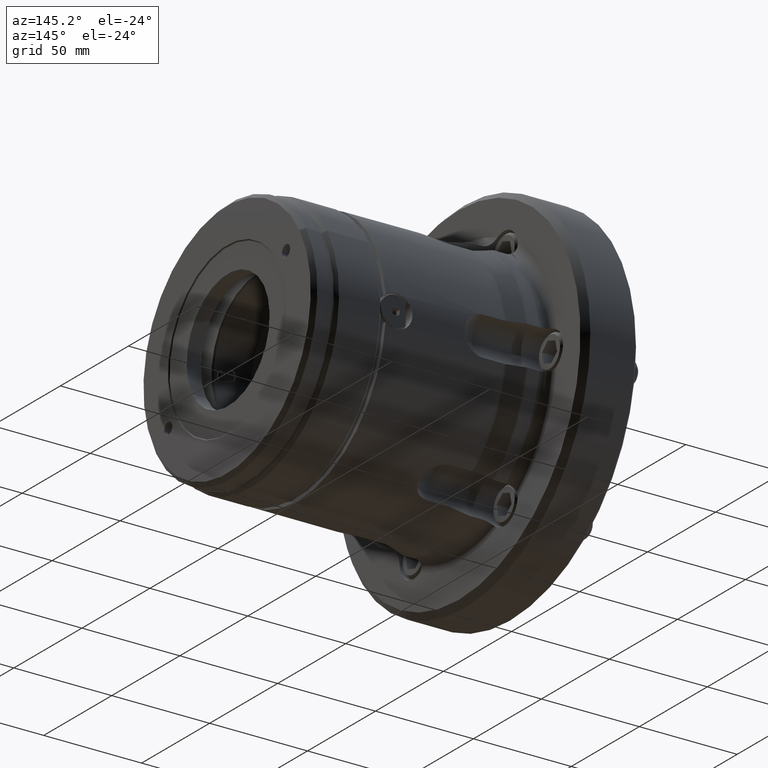
[diagram: clean part render]
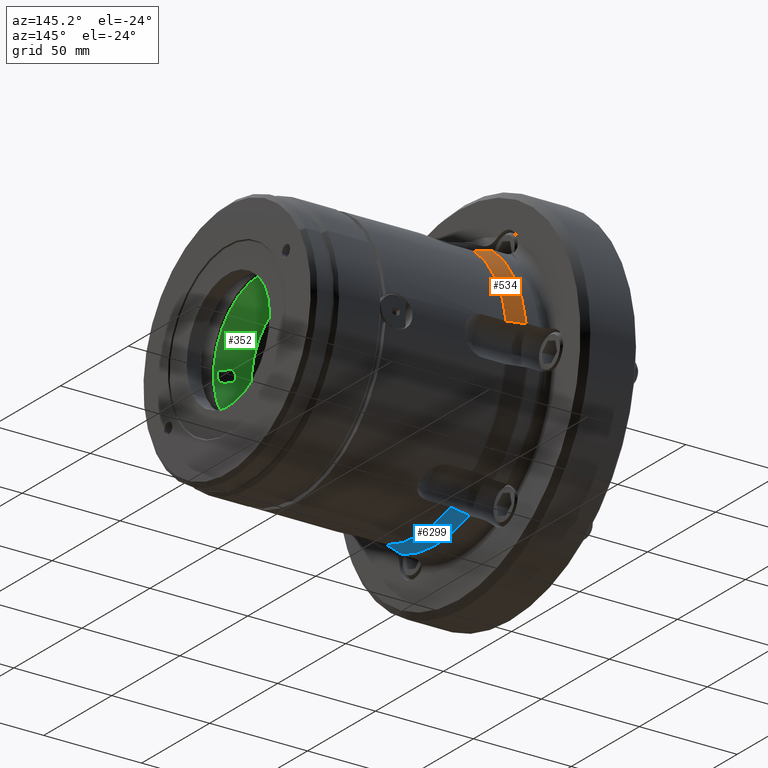
[diagram: same view with three faces highlighted in distinct colors, each labeled with its STEP entity id]
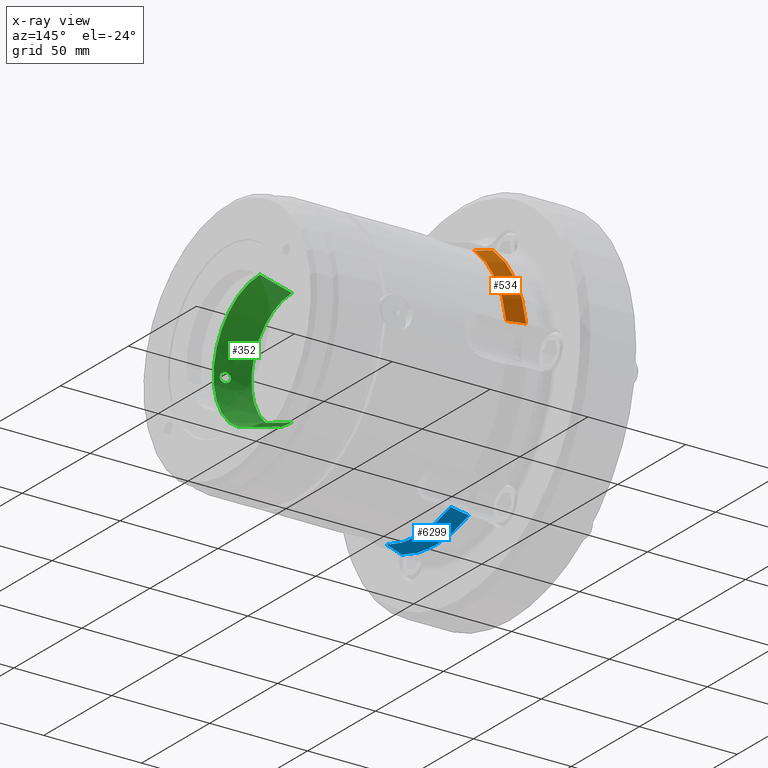
[diagram: x-ray of the same camera — body ghosted, the three highlighted faces saturated]
A machine part, auxiliary view with three faces highlighted in distinct colors.
The next image is the same camera in x-ray (body ghosted, the three faces saturated) — at least one of them is partly hidden behind the body in this view.
Their STEP definitions:

[orange] entity #534 — the highlighted conical surface has half-angle 15 deg.
#66 = VERTEX_POINT ( 'NONE', #6745 ) ;
#382 = ORIENTED_EDGE ( 'NONE', *, *, #6965, .T. ) ;
#386 = CARTESIAN_POINT ( 'NONE',  ( 40.55576355544213400, 41.74942194600376400, 52.33713564166990300 ) ) ;
#534 = ADVANCED_FACE ( 'NONE', ( #11330 ), #5850, .T. ) ;
#833 = VERTEX_POINT ( 'NONE', #9434 ) ;
#835 = ORIENTED_EDGE ( 'NONE', *, *, #6573, .T. ) ;
#1059 = ORIENTED_EDGE ( 'NONE', *, *, #6143, .T. ) ;
#1176 = EDGE_CURVE ( 'NONE', #7009, #3459, #4803, .T. ) ;
#1978 = EDGE_LOOP ( 'NONE', ( #3712, #1059, #835, #4559, #382, #5185, #10677, #5280 ) ) ;
#2233 = CARTESIAN_POINT ( 'NONE',  ( 39.43953624125606400, 66.50071246081655800, 9.999155619670443000 ) ) ;
#2395 = CARTESIAN_POINT ( 'NONE',  ( 41.78094379642838900, 65.86608721525402600, 10.00000000000000200 ) ) ;
#2457 = EDGE_CURVE ( 'NONE', #3459, #6533, #7936, .T. ) ;
#2489 = DIRECTION ( 'NONE',  ( -1.000000000000000000, -0.0000000000000000000, -0.0000000000000000000 ) ) ;
#2528 = CARTESIAN_POINT ( 'NONE',  ( 44.07769360423668600, 65.24358715568662600, 10.00000000000000200 ) ) ;
#2587 = DIRECTION ( 'NONE',  ( -1.000000000000000000, -0.0000000000000000000, -0.0000000000000000000 ) ) ;
#2605 = VERTEX_POINT ( 'NONE', #9575 ) ;
#2825 = CARTESIAN_POINT ( 'NONE',  ( 40.55576355544227600, 66.20000000000007400, 9.987492177719088800 ) ) ;
#3015 = CARTESIAN_POINT ( 'NONE',  ( 47.44862737637679100, 0.0000000000000000000, 0.0000000000000000000 ) ) ;
#3057 = AXIS2_PLACEMENT_3D ( 'NONE', #7969, #2489, #8898 ) ;
#3150 = CARTESIAN_POINT ( 'NONE',  ( 42.39373213893747300, 41.51025403784499400, 51.89786902863713200 ) ) ;
#3459 = VERTEX_POINT ( 'NONE', #5602 ) ;
#3598 = CARTESIAN_POINT ( 'NONE',  ( 40.55576355544213400, 41.74942194600376400, 52.33713564166990300 ) ) ;
#3712 = ORIENTED_EDGE ( 'NONE', *, *, #5137, .F. ) ;
#3781 = CARTESIAN_POINT ( 'NONE',  ( 44.07769360423668600, 41.28204761568830600, 51.50260391084825100 ) ) ;
#3787 = B_SPLINE_CURVE_WITH_KNOTS ( 'NONE', 3,
 ( #9276, #3781, #10234, #4679 ),
 .UNSPECIFIED., .F., .F.,
 ( 4, 4 ),
 ( 0.003517723848099849400, 0.008751790873384511200 ),
 .UNSPECIFIED. ) ;
#3928 = DIRECTION ( 'NONE',  ( 0.0000000000000000000, 0.0000000000000000000, 1.000000000000000000 ) ) ;
#4238 = CARTESIAN_POINT ( 'NONE',  ( 40.55576355544227600, 66.20000000000007400, 9.987492177719088800 ) ) ;
#4559 = ORIENTED_EDGE ( 'NONE', *, *, #7872, .T. ) ;
#4679 = CARTESIAN_POINT ( 'NONE',  ( 47.44862737637678400, 40.75220749512028800, 50.76964606401892200 ) ) ;
#4803 = CIRCLE ( 'NONE', #3057, 67.39777747886719800 ) ;
#5104 = AXIS2_PLACEMENT_3D ( 'NONE', #3015, #9427, #3928 ) ;
#5137 = EDGE_CURVE ( 'NONE', #6199, #7009, #8225, .T. ) ;
#5185 = ORIENTED_EDGE ( 'NONE', *, *, #6909, .T. ) ;
#5280 = ORIENTED_EDGE ( 'NONE', *, *, #1176, .F. ) ;
#5602 = CARTESIAN_POINT ( 'NONE',  ( 38.88149964254541400, 66.65180216709819700, 9.999883847770606200 ) ) ;
#5850 = CONICAL_SURFACE ( 'NONE', #5981, 65.10222252113280200, 0.2617993877991499600 ) ;
#5981 = AXIS2_PLACEMENT_3D ( 'NONE', #6359, #2587, #8185 ) ;
#6143 = EDGE_CURVE ( 'NONE', #6199, #2605, #10204, .T. ) ;
#6199 = VERTEX_POINT ( 'NONE', #386 ) ;
#6274 = CARTESIAN_POINT ( 'NONE',  ( 38.88149964254541400, 41.98605453061273400, 52.72221196083594200 ) ) ;
#6359 = CARTESIAN_POINT ( 'NONE',  ( 47.44862737637679100, 0.0000000000000000000, 0.0000000000000000000 ) ) ;
#6451 = CARTESIAN_POINT ( 'NONE',  ( 39.43953624125602200, 41.90987901343741800, 52.59172855099580300 ) ) ;
#6533 = VERTEX_POINT ( 'NONE', #2825 ) ;
#6553 = B_SPLINE_CURVE_WITH_KNOTS ( 'NONE', 3,
 ( #8804, #2395, #9772, #4238 ),
 .UNSPECIFIED., .F., .F.,
 ( 4, 4 ),
 ( 0.005234273990664197600, 0.007138934710697816100 ),
 .UNSPECIFIED. ) ;
#6573 = EDGE_CURVE ( 'NONE', #2605, #833, #3787, .T. ) ;
#6745 = CARTESIAN_POINT ( 'NONE',  ( 42.39373213893747300, 65.69999999999998900, 10.00000000000000200 ) ) ;
#6769 = CARTESIAN_POINT ( 'NONE',  ( 40.55576355544213400, 41.74942194600376400, 52.33713564166990300 ) ) ;
#6909 = EDGE_CURVE ( 'NONE', #66, #6533, #6553, .T. ) ;
#6965 = EDGE_CURVE ( 'NONE', #12006, #66, #8378, .T. ) ;
#7009 = VERTEX_POINT ( 'NONE', #6274 ) ;
#7075 = CARTESIAN_POINT ( 'NONE',  ( 45.76265557671763400, 64.79155142998530400, 9.968894665583066600 ) ) ;
#7494 = CARTESIAN_POINT ( 'NONE',  ( 47.44862737637679100, 64.34390698014529200, 9.907623919058565300 ) ) ;
#7872 = EDGE_CURVE ( 'NONE', #833, #12006, #11402, .T. ) ;
#7936 = B_SPLINE_CURVE_WITH_KNOTS ( 'NONE', 3,
 ( #10336, #2233, #11003, #11410 ),
 .UNSPECIFIED., .F., .F.,
 ( 4, 4 ),
 ( 2.071533034135757400E-007, 0.001734194007155752900 ),
 .UNSPECIFIED. ) ;
#7969 = CARTESIAN_POINT ( 'NONE',  ( 38.88149964254541400, 0.0000000000000000000, 0.0000000000000000000 ) ) ;
#8185 = DIRECTION ( 'NONE',  ( 0.0000000000000000000, 0.0000000000000000000, 1.000000000000000000 ) ) ;
#8225 = B_SPLINE_CURVE_WITH_KNOTS ( 'NONE', 3,
 ( #3598, #9722, #6451, #9957 ),
 .UNSPECIFIED., .F., .F.,
 ( 4, 4 ),
 ( 0.004601392502524828300, 0.006335379356377017700 ),
 .UNSPECIFIED. ) ;
#8378 = B_SPLINE_CURVE_WITH_KNOTS ( 'NONE', 3,
 ( #9844, #7075, #2528, #8933 ),
 .UNSPECIFIED., .F., .F.,
 ( 4, 4 ),
 ( 2.069653795348635900E-007, 0.005234273990664197600 ),
 .UNSPECIFIED. ) ;
#8626 = CARTESIAN_POINT ( 'NONE',  ( 41.78094379642833900, 41.59329764547202000, 52.04170477629094900 ) ) ;
#8804 = CARTESIAN_POINT ( 'NONE',  ( 42.39373213893747300, 65.69999999999998900, 10.00000000000000200 ) ) ;
#8898 = DIRECTION ( 'NONE',  ( 0.0000000000000000000, 0.0000000000000000000, 1.000000000000000000 ) ) ;
#8933 = CARTESIAN_POINT ( 'NONE',  ( 42.39373213893747300, 65.69999999999998900, 10.00000000000000200 ) ) ;
#9276 = CARTESIAN_POINT ( 'NONE',  ( 42.39373213893747300, 41.51025403784499400, 51.89786902863713200 ) ) ;
#9427 = DIRECTION ( 'NONE',  ( -1.000000000000000000, -0.0000000000000000000, -0.0000000000000000000 ) ) ;
#9434 = CARTESIAN_POINT ( 'NONE',  ( 47.44862737637678400, 40.75220749512028800, 50.76964606401892200 ) ) ;
#9575 = CARTESIAN_POINT ( 'NONE',  ( 42.39373213893747300, 41.51025403784499400, 51.89786902863713200 ) ) ;
#9722 = CARTESIAN_POINT ( 'NONE',  ( 39.99762379941529400, 41.83098599449668600, 52.46337874281599800 ) ) ;
#9772 = CARTESIAN_POINT ( 'NONE',  ( 41.16828785504603900, 66.03275407823177500, 9.995864946317667000 ) ) ;
#9844 = CARTESIAN_POINT ( 'NONE',  ( 47.44862737637679100, 64.34390698014529200, 9.907623919058565300 ) ) ;
#9957 = CARTESIAN_POINT ( 'NONE',  ( 38.88149964254541400, 41.98605453061273400, 52.72221196083594200 ) ) ;
#10204 = B_SPLINE_CURVE_WITH_KNOTS ( 'NONE', 3,
 ( #6769, #11394, #8626, #3150 ),
 .UNSPECIFIED., .F., .F.,
 ( 4, 4 ),
 ( 0.001613063128066079700, 0.003517723848099849400 ),
 .UNSPECIFIED. ) ;
#10234 = CARTESIAN_POINT ( 'NONE',  ( 45.76265557671763400, 41.02909174303937300, 51.12668215618123900 ) ) ;
#10336 = CARTESIAN_POINT ( 'NONE',  ( 38.88149964254541400, 66.65180216709819700, 9.999883847770606200 ) ) ;
#10677 = ORIENTED_EDGE ( 'NONE', *, *, #2457, .F. ) ;
#11003 = CARTESIAN_POINT ( 'NONE',  ( 39.99762379941538600, 66.35011175689157900, 9.995007165176417600 ) ) ;
#11330 = FACE_OUTER_BOUND ( 'NONE', #1978, .T. ) ;
#11394 = CARTESIAN_POINT ( 'NONE',  ( 41.16828785504594600, 41.67305001542599300, 52.18811004043992300 ) ) ;
#11402 = CIRCLE ( 'NONE', #5104, 65.10222252113280200 ) ;
#11410 = CARTESIAN_POINT ( 'NONE',  ( 40.55576355544227600, 66.20000000000007400, 9.987492177719088800 ) ) ;
#12006 = VERTEX_POINT ( 'NONE', #7494 ) ;

[blue] entity #6299 — the highlighted conical surface has half-angle 15 deg.
#18 = EDGE_CURVE ( 'NONE', #1028, #9770, #4893, .T. ) ;
#92 = CARTESIAN_POINT ( 'NONE',  ( 39.43953624125608600, -24.59083344738002500, -62.59088417066660500 ) ) ;
#219 = CARTESIAN_POINT ( 'NONE',  ( 38.88149964254542100, -24.66574763648636500, -62.72209580860693700 ) ) ;
#276 = AXIS2_PLACEMENT_3D ( 'NONE', #4942, #11412, #5888 ) ;
#278 = CARTESIAN_POINT ( 'NONE',  ( 47.44862737637679100, 23.59169948502545100, -60.67726998307802700 ) ) ;
#421 = CARTESIAN_POINT ( 'NONE',  ( 40.55576355544222600, 24.45057805399680700, -62.32462781938951200 ) ) ;
#929 = CARTESIAN_POINT ( 'NONE',  ( 47.44862737637679100, -23.59169948502587400, -60.67726998307786300 ) ) ;
#1028 = VERTEX_POINT ( 'NONE', #421 ) ;
#1234 = CARTESIAN_POINT ( 'NONE',  ( 47.44862737637679100, 23.59169948502545100, -60.67726998307802700 ) ) ;
#1346 = CARTESIAN_POINT ( 'NONE',  ( 42.39373213893747300, 24.18974596215547000, -61.89786902863768600 ) ) ;
#1602 = CARTESIAN_POINT ( 'NONE',  ( 40.55576355544232600, -24.45057805399722300, -62.32462781938932000 ) ) ;
#1723 = ORIENTED_EDGE ( 'NONE', *, *, #3366, .F. ) ;
#2120 = VERTEX_POINT ( 'NONE', #219 ) ;
#2312 = CARTESIAN_POINT ( 'NONE',  ( 39.43953624125605700, 24.59083344737960200, -62.59088417066678300 ) ) ;
#2326 = VERTEX_POINT ( 'NONE', #4777 ) ;
#2497 = DIRECTION ( 'NONE',  ( -1.000000000000000000, -0.0000000000000000000, -0.0000000000000000000 ) ) ;
#2693 = VERTEX_POINT ( 'NONE', #1234 ) ;
#2789 = FACE_OUTER_BOUND ( 'NONE', #5609, .T. ) ;
#2833 = CARTESIAN_POINT ( 'NONE',  ( 44.07769360423665000, -23.96153953999922200, -61.50260391084863400 ) ) ;
#3090 = CARTESIAN_POINT ( 'NONE',  ( 44.07769360423669300, 23.96153953999878900, -61.50260391084879100 ) ) ;
#3136 = CARTESIAN_POINT ( 'NONE',  ( 41.78094379642836700, -24.27278956978292300, -62.04170477629131900 ) ) ;
#3145 = ORIENTED_EDGE ( 'NONE', *, *, #18, .T. ) ;
#3366 = EDGE_CURVE ( 'NONE', #2120, #3974, #8066, .T. ) ;
#3637 = ORIENTED_EDGE ( 'NONE', *, *, #10301, .F. ) ;
#3887 = CARTESIAN_POINT ( 'NONE',  ( 41.78094379642837500, 24.27278956978249300, -62.04170477629148900 ) ) ;
#3974 = VERTEX_POINT ( 'NONE', #9338 ) ;
#4000 = CARTESIAN_POINT ( 'NONE',  ( 42.39373213893747300, 24.18974596215547000, -61.89786902863768600 ) ) ;
#4089 = B_SPLINE_CURVE_WITH_KNOTS ( 'NONE', 3,
 ( #9558, #3136, #11421, #5900 ),
 .UNSPECIFIED., .F., .F.,
 ( 4, 4 ),
 ( 0.005234273990664260100, 0.007138934710697771000 ),
 .UNSPECIFIED. ) ;
#4214 = ORIENTED_EDGE ( 'NONE', *, *, #6857, .F. ) ;
#4684 = B_SPLINE_CURVE_WITH_KNOTS ( 'NONE', 3,
 ( #11505, #5980, #2312, #8729 ),
 .UNSPECIFIED., .F., .F.,
 ( 4, 4 ),
 ( 0.004601392502524726800, 0.006335379356377002900 ),
 .UNSPECIFIED. ) ;
#4699 = CARTESIAN_POINT ( 'NONE',  ( 39.99762379941542900, -24.51912576239581700, -62.45838590799276300 ) ) ;
#4756 = CARTESIAN_POINT ( 'NONE',  ( 38.88149964254541400, 24.66574763648592800, -62.72209580860708700 ) ) ;
#4777 = CARTESIAN_POINT ( 'NONE',  ( 47.44862737637679100, -23.59169948502587400, -60.67726998307786300 ) ) ;
#4893 = B_SPLINE_CURVE_WITH_KNOTS ( 'NONE', 3,
 ( #11450, #11290, #3887, #4943 ),
 .UNSPECIFIED., .F., .F.,
 ( 4, 4 ),
 ( 0.001613063128066180600, 0.003517723848099843300 ),
 .UNSPECIFIED. ) ;
#4901 = CONICAL_SURFACE ( 'NONE', #11581, 65.10222252113280200, 0.2617993877991499600 ) ;
#4911 = CARTESIAN_POINT ( 'NONE',  ( 38.88149964254542100, -24.66574763648636500, -62.72209580860693700 ) ) ;
#4942 = CARTESIAN_POINT ( 'NONE',  ( 47.44862737637679100, 0.0000000000000000000, 0.0000000000000000000 ) ) ;
#4943 = CARTESIAN_POINT ( 'NONE',  ( 42.39373213893747300, 24.18974596215547000, -61.89786902863768600 ) ) ;
#4958 = CARTESIAN_POINT ( 'NONE',  ( 38.88149964254541400, 0.0000000000000000000, 0.0000000000000000000 ) ) ;
#5259 = CARTESIAN_POINT ( 'NONE',  ( 47.44862737637679100, 0.0000000000000000000, 0.0000000000000000000 ) ) ;
#5609 = EDGE_LOOP ( 'NONE', ( #11963, #7375, #9819, #1723, #3637, #4214, #3145, #6815 ) ) ;
#5856 = CARTESIAN_POINT ( 'NONE',  ( 45.76265557671763400, 23.76245968694640400, -61.09557682176483700 ) ) ;
#5888 = DIRECTION ( 'NONE',  ( 0.0000000000000000000, 0.0000000000000000000, 1.000000000000000000 ) ) ;
#5900 = CARTESIAN_POINT ( 'NONE',  ( 40.55576355544232600, -24.45057805399722300, -62.32462781938932000 ) ) ;
#5905 = DIRECTION ( 'NONE',  ( 0.0000000000000000000, 0.0000000000000000000, 1.000000000000000000 ) ) ;
#5909 = AXIS2_PLACEMENT_3D ( 'NONE', #4958, #11428, #5905 ) ;
#5980 = CARTESIAN_POINT ( 'NONE',  ( 39.99762379941535800, 24.51912576239539700, -62.45838590799294100 ) ) ;
#6018 = CIRCLE ( 'NONE', #5909, 67.39777747886719800 ) ;
#6077 = EDGE_CURVE ( 'NONE', #2326, #6336, #8300, .T. ) ;
#6299 = ADVANCED_FACE ( 'NONE', ( #2789 ), #4901, .T. ) ;
#6336 = VERTEX_POINT ( 'NONE', #8945 ) ;
#6483 = CARTESIAN_POINT ( 'NONE',  ( 45.76265557671762000, -23.76245968694683300, -61.09557682176468800 ) ) ;
#6815 = ORIENTED_EDGE ( 'NONE', *, *, #10888, .T. ) ;
#6857 = EDGE_CURVE ( 'NONE', #1028, #10185, #4684, .T. ) ;
#7375 = ORIENTED_EDGE ( 'NONE', *, *, #6077, .T. ) ;
#7851 = B_SPLINE_CURVE_WITH_KNOTS ( 'NONE', 3,
 ( #4000, #3090, #5856, #278 ),
 .UNSPECIFIED., .F., .F.,
 ( 4, 4 ),
 ( 0.003517723848099843300, 0.008751790873384511200 ),
 .UNSPECIFIED. ) ;
#8066 = B_SPLINE_CURVE_WITH_KNOTS ( 'NONE', 3,
 ( #4911, #92, #4699, #1602 ),
 .UNSPECIFIED., .F., .F.,
 ( 4, 4 ),
 ( 2.071533034213529600E-007, 0.001734194007155804300 ),
 .UNSPECIFIED. ) ;
#8258 = EDGE_CURVE ( 'NONE', #2693, #2326, #10390, .T. ) ;
#8300 = B_SPLINE_CURVE_WITH_KNOTS ( 'NONE', 3,
 ( #929, #6483, #2833, #9239 ),
 .UNSPECIFIED., .F., .F.,
 ( 4, 4 ),
 ( 2.069653795422297000E-007, 0.005234273990664260100 ),
 .UNSPECIFIED. ) ;
#8729 = CARTESIAN_POINT ( 'NONE',  ( 38.88149964254541400, 24.66574763648592800, -62.72209580860708700 ) ) ;
#8945 = CARTESIAN_POINT ( 'NONE',  ( 42.39373213893743000, -24.18974596215590700, -61.89786902863752300 ) ) ;
#9239 = CARTESIAN_POINT ( 'NONE',  ( 42.39373213893743000, -24.18974596215590700, -61.89786902863752300 ) ) ;
#9314 = EDGE_CURVE ( 'NONE', #6336, #3974, #4089, .T. ) ;
#9338 = CARTESIAN_POINT ( 'NONE',  ( 40.55576355544232600, -24.45057805399722300, -62.32462781938932000 ) ) ;
#9558 = CARTESIAN_POINT ( 'NONE',  ( 42.39373213893743000, -24.18974596215590700, -61.89786902863752300 ) ) ;
#9770 = VERTEX_POINT ( 'NONE', #1346 ) ;
#9819 = ORIENTED_EDGE ( 'NONE', *, *, #9314, .T. ) ;
#10185 = VERTEX_POINT ( 'NONE', #4756 ) ;
#10301 = EDGE_CURVE ( 'NONE', #10185, #2120, #6018, .T. ) ;
#10390 = CIRCLE ( 'NONE', #276, 65.10222252113280200 ) ;
#10888 = EDGE_CURVE ( 'NONE', #9770, #2693, #7851, .T. ) ;
#11290 = CARTESIAN_POINT ( 'NONE',  ( 41.16828785504601000, 24.35970406280628000, -62.18397498675811600 ) ) ;
#11412 = DIRECTION ( 'NONE',  ( -1.000000000000000000, -0.0000000000000000000, -0.0000000000000000000 ) ) ;
#11421 = CARTESIAN_POINT ( 'NONE',  ( 41.16828785504606000, -24.35970406280671000, -62.18397498675794600 ) ) ;
#11428 = DIRECTION ( 'NONE',  ( -1.000000000000000000, -0.0000000000000000000, -0.0000000000000000000 ) ) ;
#11450 = CARTESIAN_POINT ( 'NONE',  ( 40.55576355544222600, 24.45057805399680700, -62.32462781938951200 ) ) ;
#11505 = CARTESIAN_POINT ( 'NONE',  ( 40.55576355544222600, 24.45057805399680700, -62.32462781938951200 ) ) ;
#11581 = AXIS2_PLACEMENT_3D ( 'NONE', #5259, #2497, #11724 ) ;
#11724 = DIRECTION ( 'NONE',  ( 0.0000000000000000000, 0.0000000000000000000, 1.000000000000000000 ) ) ;
#11963 = ORIENTED_EDGE ( 'NONE', *, *, #8258, .T. ) ;

[green] entity #352 — the highlighted conical surface has half-angle 14.75 deg.
#352 = ADVANCED_FACE ( 'NONE', ( #5711, #8141 ), #10047, .F. ) ;
#528 = CARTESIAN_POINT ( 'NONE',  ( 103.5546019482055300, 0.0000000000000000000, 0.0000000000000000000 ) ) ;
#574 = VECTOR ( 'NONE', #1097, 1000.000000000000000 ) ;
#759 = CARTESIAN_POINT ( 'NONE',  ( 96.08010951923155600, -32.08588344025301400, -0.1650598318095645400 ) ) ;
#800 = CARTESIAN_POINT ( 'NONE',  ( 97.30598299959204700, -32.33597157585694500, -2.170713605895867800 ) ) ;
#838 = B_SPLINE_CURVE_WITH_KNOTS ( 'NONE', 3,
 ( #6416, #11944, #862, #7324, #1803, #8234, #2766, #9172, #3683, #10132, #4571, #11067, #5521, #11982, #6455, #904, #7358, #1839, #8272, #2807, #9210, #3727, #10176, #4612, #11098, #5564, #12019, #6490, #938, #7396, #1875, #8311 ),
 .UNSPECIFIED., .F., .F.,
 ( 4, 2, 2, 2, 2, 2, 2, 2, 2, 2, 2, 2, 2, 2, 2, 4 ),
 ( 0.005616914299048828900, 0.006105587961846467900, 0.006594261624644107800, 0.007082935287441746900, 0.007571608950239385900, 0.008060282613037025900, 0.008548956275834665800, 0.009037629938632305700, 0.009526303601429943900, 0.01050365092702522700, 0.01099232458982285300, 0.01148099825262047900, 0.01196967191541810400, 0.01245834557821573100, 0.01294701924101335600, 0.01343569290381098000 ),
 .UNSPECIFIED. ) ;
#842 = CARTESIAN_POINT ( 'NONE',  ( 100.1102203948386600, -33.09367003455113100, -1.881807127161144500 ) ) ;
#862 = CARTESIAN_POINT ( 'NONE',  ( 100.8998163975034600, -33.35356897009342700, 0.3290031865106857700 ) ) ;
#904 = CARTESIAN_POINT ( 'NONE',  ( 98.83798398508513100, -32.71784598659858300, 2.483795087295169500 ) ) ;
#938 = CARTESIAN_POINT ( 'NONE',  ( 96.15879235752349500, -32.10046732776863400, 0.6474442245195405300 ) ) ;
#1097 = DIRECTION ( 'NONE',  ( 0.9670459389139426400, 3.117974609265819000E-017, 0.2546019482055295000 ) ) ;
#1278 = CARTESIAN_POINT ( 'NONE',  ( 87.20780272584640600, 0.0000000000000000000, -29.75000000000000000 ) ) ;
#1376 = VECTOR ( 'NONE', #8618, 1000.000000000000000 ) ;
#1427 = CARTESIAN_POINT ( 'NONE',  ( 87.20780272584640600, 0.0000000000000000000, 0.0000000000000000000 ) ) ;
#1467 = DIRECTION ( 'NONE',  ( 0.0000000000000000000, 0.0000000000000000000, 1.000000000000000000 ) ) ;
#1739 = CARTESIAN_POINT ( 'NONE',  ( 97.74157579361931900, -32.43668933638544200, -2.372879352496039200 ) ) ;
#1782 = CARTESIAN_POINT ( 'NONE',  ( 100.6166264469534000, -33.25787243561108400, -1.256980780703632600 ) ) ;
#1803 = CARTESIAN_POINT ( 'NONE',  ( 100.7942974958605800, -33.31764307656760600, 0.8052453643711375800 ) ) ;
#1839 = CARTESIAN_POINT ( 'NONE',  ( 98.20513055334618000, -32.54949707561477400, 2.499893698743298900 ) ) ;
#1875 = CARTESIAN_POINT ( 'NONE',  ( 96.08010951923148500, -32.08588344025299900, 0.1650913574594789500 ) ) ;
#1957 = EDGE_CURVE ( 'NONE', #11033, #10137, #838, .T. ) ;
#2579 = VERTEX_POINT ( 'NONE', #8517 ) ;
#2596 = DIRECTION ( 'NONE',  ( 0.0000000000000000000, 0.0000000000000000000, 1.000000000000000000 ) ) ;
#2660 = CARTESIAN_POINT ( 'NONE',  ( 96.09607626758467800, -32.08881391316806700, -0.3274425395264851100 ) ) ;
#2680 = EDGE_LOOP ( 'NONE', ( #8388, #4849 ) ) ;
#2701 = CARTESIAN_POINT ( 'NONE',  ( 98.20573126230404200, -32.55088498706579300, -2.483993356766062800 ) ) ;
#2742 = CARTESIAN_POINT ( 'NONE',  ( 100.8396780281387900, -33.33307382518431400, -0.6475500061276450200 ) ) ;
#2766 = CARTESIAN_POINT ( 'NONE',  ( 100.6006873419696000, -33.25268267999759800, 1.254336447217332200 ) ) ;
#2807 = CARTESIAN_POINT ( 'NONE',  ( 97.44593136145138600, -32.36761219549396200, 2.247232624468463900 ) ) ;
#3313 = VERTEX_POINT ( 'NONE', #9138 ) ;
#3583 = CARTESIAN_POINT ( 'NONE',  ( 96.20612607876140000, -32.10930116544616900, -0.8059787929190642700 ) ) ;
#3619 = CARTESIAN_POINT ( 'NONE',  ( 98.68266055252625800, -32.67559091863895300, -2.499863803719594400 ) ) ;
#3661 = CARTESIAN_POINT ( 'NONE',  ( 100.9153392138012200, -33.35889318128065600, -0.1632050145733174900 ) ) ;
#3683 = CARTESIAN_POINT ( 'NONE',  ( 100.3295628815971800, -33.16377366779332200, 1.651753223691439200 ) ) ;
#3721 = DIRECTION ( 'NONE',  ( -1.000000000000000000, -0.0000000000000000000, -0.0000000000000000000 ) ) ;
#3727 = CARTESIAN_POINT ( 'NONE',  ( 97.03680956671408400, -32.27678981881486200, 1.986862360643986400 ) ) ;
#3751 = CARTESIAN_POINT ( 'NONE',  ( 96.08010951923149900, -32.08588344025300600, 3.944304526105059000E-027 ) ) ;
#3912 = CARTESIAN_POINT ( 'NONE',  ( 87.20780272584640600, 3.643324227463375400E-015, 29.75000000000000000 ) ) ;
#4265 = ORIENTED_EDGE ( 'NONE', *, *, #5117, .T. ) ;
#4481 = CARTESIAN_POINT ( 'NONE',  ( 96.40513729040982600, -32.14736606145466200, -1.252069274151209600 ) ) ;
#4518 = CARTESIAN_POINT ( 'NONE',  ( 99.14716189328220300, -32.80426136114773800, -2.419816882409732800 ) ) ;
#4571 = CARTESIAN_POINT ( 'NONE',  ( 99.98661002637834400, -33.05477467782619500, 1.988114389057338500 ) ) ;
#4612 = CARTESIAN_POINT ( 'NONE',  ( 96.68738786638736800, -32.20358099729058000, 1.652812577493179700 ) ) ;
#4849 = ORIENTED_EDGE ( 'NONE', *, *, #1957, .T. ) ;
#4852 = DIRECTION ( 'NONE',  ( 1.000000000000000000, 0.0000000000000000000, 0.0000000000000000000 ) ) ;
#4927 = CIRCLE ( 'NONE', #10652, 29.75000000000000000 ) ;
#5024 = EDGE_LOOP ( 'NONE', ( #4265, #6564, #6185, #5151 ) ) ;
#5117 = EDGE_CURVE ( 'NONE', #2579, #9789, #4927, .T. ) ;
#5151 = ORIENTED_EDGE ( 'NONE', *, *, #10332, .F. ) ;
#5429 = CARTESIAN_POINT ( 'NONE',  ( 96.68696721788583700, -32.20349250130198000, -1.652423472374807900 ) ) ;
#5465 = CARTESIAN_POINT ( 'NONE',  ( 99.59008086135709400, -32.93355123389686400, -2.245974960092642200 ) ) ;
#5521 = CARTESIAN_POINT ( 'NONE',  ( 99.58716258223387300, -32.93267789827695000, 2.247483076228813800 ) ) ;
#5564 = CARTESIAN_POINT ( 'NONE',  ( 96.40544798416745200, -32.14742676109899100, 1.252597541091707600 ) ) ;
#5614 = EDGE_CURVE ( 'NONE', #9789, #3313, #10144, .T. ) ;
#5711 = FACE_BOUND ( 'NONE', #2680, .T. ) ;
#5796 = DIRECTION ( 'NONE',  ( 0.0000000000000000000, 0.0000000000000000000, -1.000000000000000000 ) ) ;
#5895 = AXIS2_PLACEMENT_3D ( 'NONE', #528, #6978, #1467 ) ;
#6185 = ORIENTED_EDGE ( 'NONE', *, *, #8417, .T. ) ;
#6314 = LINE ( 'NONE', #1278, #1376 ) ;
#6350 = CARTESIAN_POINT ( 'NONE',  ( 97.04054747129259800, -32.27759861109459600, -1.989703558798942700 ) ) ;
#6391 = CARTESIAN_POINT ( 'NONE',  ( 99.98762433262118100, -33.05508918299322100, -1.987351416761100600 ) ) ;
#6416 = CARTESIAN_POINT ( 'NONE',  ( 100.9153392138012000, -33.35889318128064900, 3.061616952874277000E-016 ) ) ;
#6455 = CARTESIAN_POINT ( 'NONE',  ( 99.14698728652523100, -32.80420885012601000, 2.419904949313289600 ) ) ;
#6490 = CARTESIAN_POINT ( 'NONE',  ( 96.20614504418360000, -32.10930451935640700, 0.8060830495175327300 ) ) ;
#6564 = ORIENTED_EDGE ( 'NONE', *, *, #5614, .T. ) ;
#6792 = AXIS2_PLACEMENT_3D ( 'NONE', #8551, #4852, #5796 ) ;
#6978 = DIRECTION ( 'NONE',  ( 1.000000000000000000, 0.0000000000000000000, 0.0000000000000000000 ) ) ;
#7212 = CARTESIAN_POINT ( 'NONE',  ( 96.08010951923149900, -32.08588344025300600, 3.944304526105059000E-027 ) ) ;
#7257 = CARTESIAN_POINT ( 'NONE',  ( 97.44616479708334100, -32.36766007843571200, -2.247439857531778400 ) ) ;
#7303 = CARTESIAN_POINT ( 'NONE',  ( 100.4396116000693400, -33.19895519603510100, -1.535982285539124100 ) ) ;
#7324 = CARTESIAN_POINT ( 'NONE',  ( 100.8391624267639900, -33.33289861449291200, 0.6493495038005743200 ) ) ;
#7358 = CARTESIAN_POINT ( 'NONE',  ( 98.67815591975987400, -32.67438698778907700, 2.500052951953199100 ) ) ;
#7396 = CARTESIAN_POINT ( 'NONE',  ( 96.09613722389617900, -32.08882515596095400, 0.3278962781931657500 ) ) ;
#7480 = VERTEX_POINT ( 'NONE', #9954 ) ;
#7726 = EDGE_CURVE ( 'NONE', #10137, #11033, #11264, .T. ) ;
#8141 = FACE_OUTER_BOUND ( 'NONE', #5024, .T. ) ;
#8179 = CARTESIAN_POINT ( 'NONE',  ( 97.89563663837618900, -32.47378591219389700, -2.420702167412150700 ) ) ;
#8213 = CARTESIAN_POINT ( 'NONE',  ( 100.7940697793201000, -33.31756699099906900, -0.8056972887136523200 ) ) ;
#8234 = CARTESIAN_POINT ( 'NONE',  ( 100.6750077284622100, -33.27751328419063300, 1.108374551256474900 ) ) ;
#8272 = CARTESIAN_POINT ( 'NONE',  ( 97.88559971066897000, -32.47033044822168100, 2.434250498312524600 ) ) ;
#8311 = CARTESIAN_POINT ( 'NONE',  ( 96.08010951923149900, -32.08588344025300600, 3.944304526105059000E-027 ) ) ;
#8388 = ORIENTED_EDGE ( 'NONE', *, *, #7726, .T. ) ;
#8417 = EDGE_CURVE ( 'NONE', #3313, #7480, #11985, .T. ) ;
#8517 = CARTESIAN_POINT ( 'NONE',  ( 87.20780272584640600, 3.643324227463375400E-015, -29.75000000000000000 ) ) ;
#8551 = CARTESIAN_POINT ( 'NONE',  ( 87.20780272584640600, 0.0000000000000000000, 0.0000000000000000000 ) ) ;
#8618 = DIRECTION ( 'NONE',  ( 0.9670459389139426400, 0.0000000000000000000, -0.2546019482055295000 ) ) ;
#8717 = CARTESIAN_POINT ( 'NONE',  ( 87.20780272584640600, 0.0000000000000000000, 29.75000000000000000 ) ) ;
#9061 = CARTESIAN_POINT ( 'NONE',  ( 96.15868902483738600, -32.10044804366163600, -0.6470596973767303000 ) ) ;
#9102 = CARTESIAN_POINT ( 'NONE',  ( 98.36384338220163700, -32.59138667615987800, -2.500134511385420300 ) ) ;
#9138 = CARTESIAN_POINT ( 'NONE',  ( 103.5546019482055300, 4.170381969676982100E-015, 34.05375307052257500 ) ) ;
#9148 = CARTESIAN_POINT ( 'NONE',  ( 100.9003276003041400, -33.35374369407119100, -0.3253638507675832300 ) ) ;
#9172 = CARTESIAN_POINT ( 'NONE',  ( 100.4284203519497800, -33.19596557279091800, 1.525050924896949300 ) ) ;
#9210 = CARTESIAN_POINT ( 'NONE',  ( 97.30372500669807300, -32.33546208066341200, 2.169459498039275000 ) ) ;
#9789 = VERTEX_POINT ( 'NONE', #8717 ) ;
#9954 = CARTESIAN_POINT ( 'NONE',  ( 103.5546019482055300, 0.0000000000000000000, -34.05375307052257500 ) ) ;
#10029 = CARTESIAN_POINT ( 'NONE',  ( 96.32960230071172700, -32.13280857532308200, -1.108504801485604000 ) ) ;
#10047 = CONICAL_SURFACE ( 'NONE', #6792, 29.75000000000000000, 0.2574360646691655800 ) ;
#10073 = CARTESIAN_POINT ( 'NONE',  ( 98.83927750864516800, -32.71820381874093200, -2.483579353456648200 ) ) ;
#10108 = CARTESIAN_POINT ( 'NONE',  ( 100.9153392138012000, -33.35889318128064900, 3.061616952874277000E-016 ) ) ;
#10132 = CARTESIAN_POINT ( 'NONE',  ( 100.1071194113211400, -33.09268497955449800, 1.884827514089621100 ) ) ;
#10137 = VERTEX_POINT ( 'NONE', #3751 ) ;
#10144 = LINE ( 'NONE', #3912, #574 ) ;
#10176 = CARTESIAN_POINT ( 'NONE',  ( 96.91359520062569300, -32.25057291137123600, 1.883436379984926300 ) ) ;
#10332 = EDGE_CURVE ( 'NONE', #2579, #7480, #6314, .T. ) ;
#10652 = AXIS2_PLACEMENT_3D ( 'NONE', #1427, #3721, #2596 ) ;
#10960 = CARTESIAN_POINT ( 'NONE',  ( 96.58349467561312500, -32.18263691074756100, -1.523908178702924700 ) ) ;
#10999 = CARTESIAN_POINT ( 'NONE',  ( 99.30004198682942700, -32.84819068841279900, -2.371509747090918100 ) ) ;
#11033 = VERTEX_POINT ( 'NONE', #11626 ) ;
#11067 = CARTESIAN_POINT ( 'NONE',  ( 99.72748391319531400, -32.97502041243640700, 2.169133118916451800 ) ) ;
#11098 = CARTESIAN_POINT ( 'NONE',  ( 96.58369520579429900, -32.18267730970470100, 1.524158923599611400 ) ) ;
#11264 = B_SPLINE_CURVE_WITH_KNOTS ( 'NONE', 3,
 ( #7212, #759, #2660, #9061, #3583, #10029, #4481, #10960, #5429, #11883, #6350, #800, #7257, #1739, #8179, #2701, #9102, #3619, #10073, #4518, #10999, #5465, #11923, #6391, #842, #7303, #1782, #8213, #2742, #9148, #3661, #10108 ),
 .UNSPECIFIED., .F., .F.,
 ( 4, 2, 2, 2, 2, 2, 2, 2, 2, 2, 2, 2, 2, 2, 2, 4 ),
 ( 0.01343569290381098000, 0.01392427325006527500, 0.01441285359631956800, 0.01490143394257386300, 0.01539001428882815800, 0.01587859463508245100, 0.01636717498133674600, 0.01685575532759104100, 0.01734433567384533600, 0.01783291602009963100, 0.01832149636635392600, 0.01881007671260821700, 0.01929865705886251200, 0.02027581775137107800, 0.02076439809762535900, 0.02125297844387964000 ),
 .UNSPECIFIED. ) ;
#11626 = CARTESIAN_POINT ( 'NONE',  ( 100.9153392138012000, -33.35889318128064900, 3.061616952874277000E-016 ) ) ;
#11883 = CARTESIAN_POINT ( 'NONE',  ( 96.91461491427732300, -32.25078585902937100, -1.884436141624684900 ) ) ;
#11923 = CARTESIAN_POINT ( 'NONE',  ( 99.72755927710916500, -32.97504129746131000, -2.169134648665545000 ) ) ;
#11944 = CARTESIAN_POINT ( 'NONE',  ( 100.9153392138011900, -33.35889318128064200, 0.1632361859618801100 ) ) ;
#11982 = CARTESIAN_POINT ( 'NONE',  ( 99.29680611033931800, -32.84725312124660900, 2.372660025455854100 ) ) ;
#11985 = CIRCLE ( 'NONE', #5895, 34.05375307052256800 ) ;
#12019 = CARTESIAN_POINT ( 'NONE',  ( 96.32983873426202600, -32.13285384481378100, 1.109026172067343800 ) ) ;